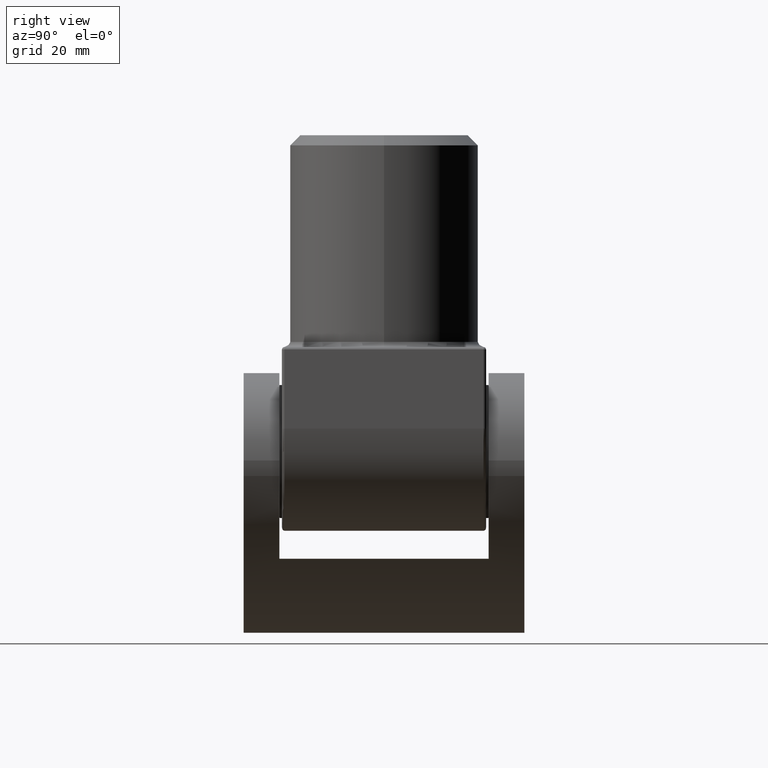
[diagram: clean part render]
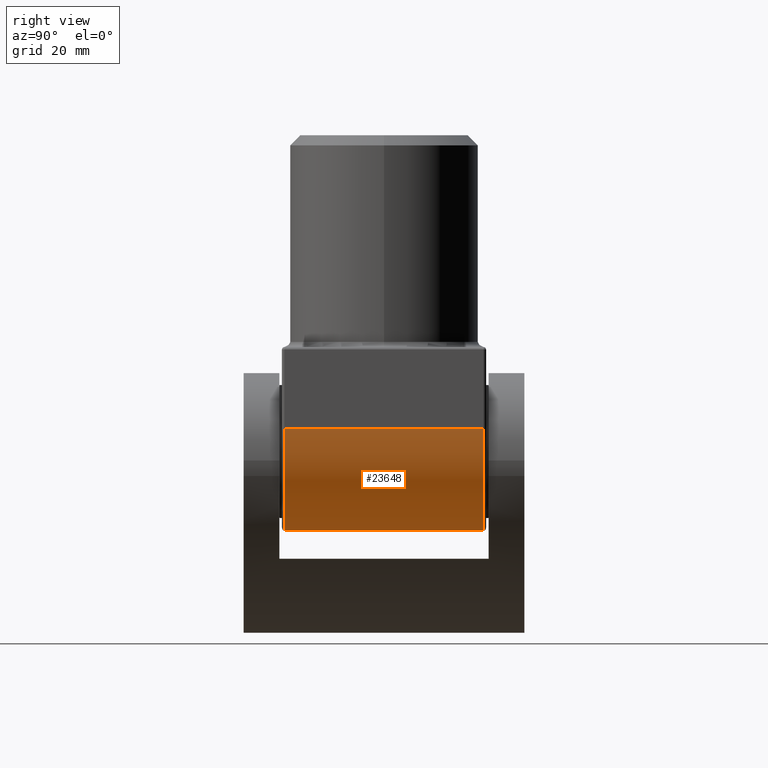
[diagram: same view with one face highlighted and labeled with its STEP entity id]
A machine part, right view. The second image highlights one B-rep face of the part: STEP entity #23648.
In plain terms, the highlighted cylindrical surface (partial cylindrical patch) has radius 20 mm, axis along (-0, -1, -0).
Its self-contained STEP definition (entity closure, byte-faithful):
#66 = ORIENTED_EDGE ( 'NONE', *, *, #16458, .F. ) ;
#400 = AXIS2_PLACEMENT_3D ( 'NONE', #13861, #15772, #23595 ) ;
#2930 = CIRCLE ( 'NONE', #400, 20.00000000000000355 ) ;
#4601 = CARTESIAN_POINT ( 'NONE',  ( 0.000000000000000000, -19.50000000000000000, -36.00000000000000000 ) ) ;
#4747 = LINE ( 'NONE', #9561, #9877 ) ;
#6122 = ORIENTED_EDGE ( 'NONE', *, *, #7180, .T. ) ;
#6139 = EDGE_CURVE ( 'NONE', #17548, #22491, #4747, .T. ) ;
#7180 = EDGE_CURVE ( 'NONE', #22491, #11799, #2930, .T. ) ;
#7257 = VECTOR ( 'NONE', #17697, 1000.000000000000000 ) ;
#9308 = AXIS2_PLACEMENT_3D ( 'NONE', #15774, #12070, #16115 ) ;
#9561 = CARTESIAN_POINT ( 'NONE',  ( 20.00000000000000355, 20.00000000000000000, -15.99999999999998934 ) ) ;
#9642 = ORIENTED_EDGE ( 'NONE', *, *, #6139, .T. ) ;
#9877 = VECTOR ( 'NONE', #15112, 1000.000000000000000 ) ;
#10402 = DIRECTION ( 'NONE',  ( 0.000000000000000000, 0.000000000000000000, -1.000000000000000000 ) ) ;
#10573 = CARTESIAN_POINT ( 'NONE',  ( 0.000000000000000000, 20.00000000000000000, -15.99999999999999289 ) ) ;
#11799 = VERTEX_POINT ( 'NONE', #4601 ) ;
#12070 = DIRECTION ( 'NONE',  ( -0.000000000000000000, -1.000000000000000000, -0.000000000000000000 ) ) ;
#12309 = CARTESIAN_POINT ( 'NONE',  ( 0.000000000000000000, 19.50000000000000000, -36.00000000000000000 ) ) ;
#13861 = CARTESIAN_POINT ( 'NONE',  ( 0.000000000000000000, -19.50000000000000000, -15.99999999999999289 ) ) ;
#14928 = CYLINDRICAL_SURFACE ( 'NONE', #19034, 20.00000000000000355 ) ;
#15112 = DIRECTION ( 'NONE',  ( -0.000000000000000000, -1.000000000000000000, -0.000000000000000000 ) ) ;
#15772 = DIRECTION ( 'NONE',  ( 0.000000000000000000, 1.000000000000000000, 0.000000000000000000 ) ) ;
#15774 = CARTESIAN_POINT ( 'NONE',  ( 0.000000000000000000, 19.50000000000000000, -15.99999999999999289 ) ) ;
#16115 = DIRECTION ( 'NONE',  ( 0.000000000000000000, 0.000000000000000000, 1.000000000000000000 ) ) ;
#16374 = DIRECTION ( 'NONE',  ( -0.000000000000000000, -1.000000000000000000, -0.000000000000000000 ) ) ;
#16458 = EDGE_CURVE ( 'NONE', #24237, #11799, #22675, .T. ) ;
#17202 = CARTESIAN_POINT ( 'NONE',  ( 20.00000000000000355, 19.50000000000000000, -15.99999999999998934 ) ) ;
#17359 = FACE_OUTER_BOUND ( 'NONE', #19894, .T. ) ;
#17548 = VERTEX_POINT ( 'NONE', #17202 ) ;
#17697 = DIRECTION ( 'NONE',  ( -0.000000000000000000, -1.000000000000000000, -0.000000000000000000 ) ) ;
#19034 = AXIS2_PLACEMENT_3D ( 'NONE', #10573, #16374, #10402 ) ;
#19254 = CARTESIAN_POINT ( 'NONE',  ( 20.00000000000000355, -19.50000000000000000, -15.99999999999998934 ) ) ;
#19894 = EDGE_LOOP ( 'NONE', ( #66, #21325, #9642, #6122 ) ) ;
#21325 = ORIENTED_EDGE ( 'NONE', *, *, #22163, .T. ) ;
#21495 = CARTESIAN_POINT ( 'NONE',  ( 0.000000000000000000, 20.00000000000000000, -36.00000000000000000 ) ) ;
#22163 = EDGE_CURVE ( 'NONE', #24237, #17548, #23473, .T. ) ;
#22491 = VERTEX_POINT ( 'NONE', #19254 ) ;
#22675 = LINE ( 'NONE', #21495, #7257 ) ;
#23473 = CIRCLE ( 'NONE', #9308, 20.00000000000000355 ) ;
#23595 = DIRECTION ( 'NONE',  ( 0.000000000000000000, 0.000000000000000000, 1.000000000000000000 ) ) ;
#23648 = ADVANCED_FACE ( 'NONE', ( #17359 ), #14928, .T. ) ;
#24237 = VERTEX_POINT ( 'NONE', #12309 ) ;